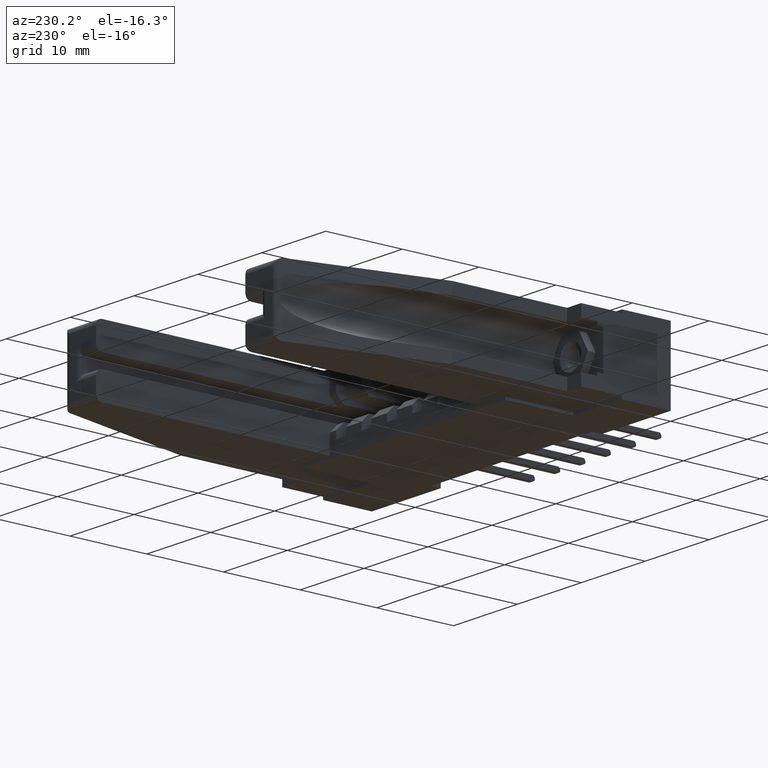
[diagram: clean part render]
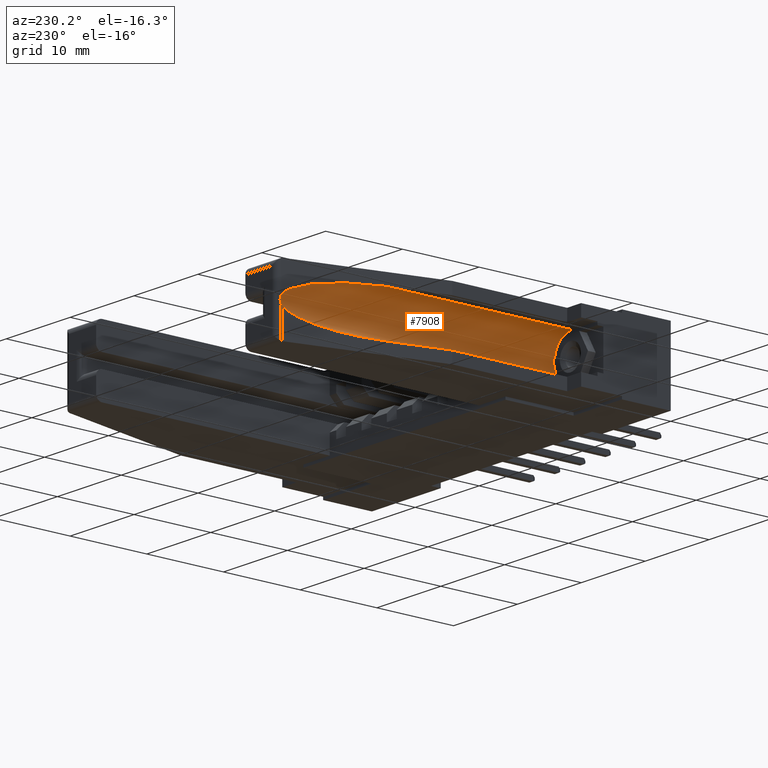
[diagram: same view with one face highlighted and labeled with its STEP entity id]
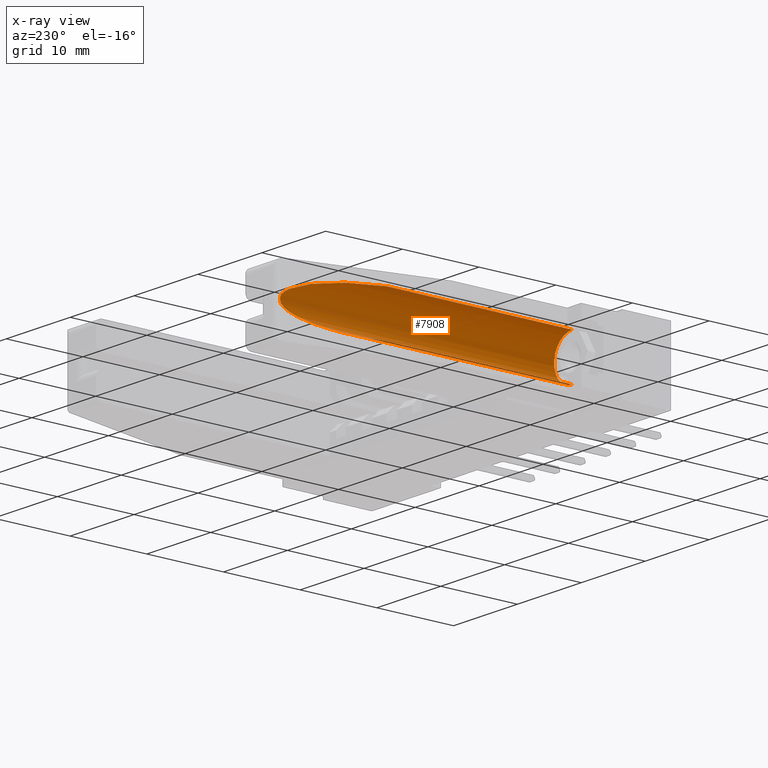
[diagram: x-ray of the same camera — body ghosted, the highlighted face saturated]
A machine part, auxiliary view. The second image highlights one B-rep face of the part: STEP entity #7908.
The next image is the same camera in x-ray: the body ghosted, the highlighted face saturated — about 0% of this face is hidden behind the body in this view.
In plain terms, the highlighted cylindrical surface (edge-blend (fillet) strip) has radius 2.8575 mm, axis along (0, 1, 0).
Its self-contained STEP definition (entity closure, byte-faithful):
#19 = CARTESIAN_POINT ( 'NONE',  ( 0.2675005102363445800, 1.533079420563984800, -0.1753409430533595100 ) ) ;
#106 = CARTESIAN_POINT ( 'NONE',  ( 0.2665477326809419000, 1.530937437894279700, -0.1865728330937866900 ) ) ;
#150 = LINE ( 'NONE', #6443, #3929 ) ;
#183 = CARTESIAN_POINT ( 'NONE',  ( 0.2665402951778601500, 1.530919410688852400, -0.1563644579457770200 ) ) ;
#198 = DIRECTION ( 'NONE',  ( -0.0000000000000000000, 1.000000000000000000, -0.0000000000000000000 ) ) ;
#322 = VERTEX_POINT ( 'NONE', #1205 ) ;
#327 = CARTESIAN_POINT ( 'NONE',  ( 0.1550000000000000000, 1.079729729729729500, -0.2839999999999999700 ) ) ;
#598 = EDGE_CURVE ( 'NONE', #10899, #322, #1661, .T. ) ;
#907 = CARTESIAN_POINT ( 'NONE',  ( 0.2674994877860725800, 1.533077309800847700, -0.1676292255492849700 ) ) ;
#1146 = VERTEX_POINT ( 'NONE', #3449 ) ;
#1205 = CARTESIAN_POINT ( 'NONE',  ( 0.2653722146876837400, 1.527184654139258400, -0.1497233100555697400 ) ) ;
#1238 = CARTESIAN_POINT ( 'NONE',  ( 0.2653722146876837400, 1.527184654139258400, -0.1932766899444302300 ) ) ;
#1294 = FACE_OUTER_BOUND ( 'NONE', #10085, .T. ) ;
#1661 =( BOUNDED_CURVE ( )  B_SPLINE_CURVE ( 3, ( #9745, #6189, #8068, #7108 ),
 .UNSPECIFIED., .F., .F. ) 
 B_SPLINE_CURVE_WITH_KNOTS ( ( 4, 4 ),
 ( 4.712388980384689700, 6.088385046520238900 ),
 .UNSPECIFIED. ) 
 CURVE ( )  GEOMETRIC_REPRESENTATION_ITEM ( )  RATIONAL_B_SPLINE_CURVE ( ( 1.000000000000000000, 0.8483458633392274600, 0.8483458633392274600, 1.000000000000000000 ) ) 
 REPRESENTATION_ITEM ( '' )  );
#1900 = DIRECTION ( 'NONE',  ( 0.0000000000000000000, 0.0000000000000000000, 1.000000000000000000 ) ) ;
#1972 = CARTESIAN_POINT ( 'NONE',  ( 0.1550000000000000300, 0.1259999999999999700, -0.05900000000000002500 ) ) ;
#1982 = CARTESIAN_POINT ( 'NONE',  ( 0.1550000000000000300, -0.3075443462566659300, -0.1715000000000000100 ) ) ;
#2216 = CARTESIAN_POINT ( 'NONE',  ( 0.1550000000000000000, 1.079729729729729500, -0.05900000000000003900 ) ) ;
#2317 = ORIENTED_EDGE ( 'NONE', *, *, #598, .T. ) ;
#2334 = VECTOR ( 'NONE', #10389, 39.37007874015748100 ) ;
#2770 = CARTESIAN_POINT ( 'NONE',  ( 0.1550000000000000000, 1.079729729729729500, -0.2839999999999999700 ) ) ;
#3180 = CARTESIAN_POINT ( 'NONE',  ( 0.1550000000000000300, 0.1259999999999999700, -0.1715000000000000100 ) ) ;
#3255 = ORIENTED_EDGE ( 'NONE', *, *, #3972, .T. ) ;
#3308 = LINE ( 'NONE', #6785, #2334 ) ;
#3449 = CARTESIAN_POINT ( 'NONE',  ( 0.1550000000000000000, 0.1259999999999999700, -0.2839999999999999700 ) ) ;
#3713 = CARTESIAN_POINT ( 'NONE',  ( 0.2653722146876837400, 1.527184654139258400, -0.1932766899444302300 ) ) ;
#3861 = DIRECTION ( 'NONE',  ( -0.0000000000000000000, 1.000000000000000000, -0.0000000000000000000 ) ) ;
#3865 = EDGE_CURVE ( 'NONE', #4045, #4012, #8794, .T. ) ;
#3929 = VECTOR ( 'NONE', #3861, 39.37007874015748100 ) ;
#3972 = EDGE_CURVE ( 'NONE', #9566, #10899, #150, .T. ) ;
#4012 = VERTEX_POINT ( 'NONE', #327 ) ;
#4045 = VERTEX_POINT ( 'NONE', #1238 ) ;
#4078 = DIRECTION ( 'NONE',  ( 0.0000000000000000000, 0.0000000000000000000, 1.000000000000000000 ) ) ;
#4646 = CARTESIAN_POINT ( 'NONE',  ( 0.2672997671973894600, 1.532692632294005800, -0.1791713265570003500 ) ) ;
#5467 = AXIS2_PLACEMENT_3D ( 'NONE', #3180, #9481, #4078 ) ;
#5653 = EDGE_CURVE ( 'NONE', #322, #4045, #8640, .T. ) ;
#5788 = EDGE_CURVE ( 'NONE', #1146, #4012, #3308, .T. ) ;
#6039 = EDGE_CURVE ( 'NONE', #1146, #9566, #9762, .T. ) ;
#6189 = CARTESIAN_POINT ( 'NONE',  ( 0.2111379438000715000, 1.307315988378668500, -0.05900000000000001800 ) ) ;
#6443 = CARTESIAN_POINT ( 'NONE',  ( 0.1550000000000000000, -0.3075443462566659300, -0.05900000000000003200 ) ) ;
#6672 = ORIENTED_EDGE ( 'NONE', *, *, #5788, .F. ) ;
#6785 = CARTESIAN_POINT ( 'NONE',  ( 0.1550000000000000000, -0.3075443462566659300, -0.2839999999999999700 ) ) ;
#7052 = ORIENTED_EDGE ( 'NONE', *, *, #3865, .T. ) ;
#7108 = CARTESIAN_POINT ( 'NONE',  ( 0.2653722146876837400, 1.527184654139258400, -0.1497233100555697400 ) ) ;
#7244 = CARTESIAN_POINT ( 'NONE',  ( 0.2111379438000716400, 1.307315988378668500, -0.2840000000000000300 ) ) ;
#7287 = CARTESIAN_POINT ( 'NONE',  ( 0.2659695340301833100, 1.529606219041284000, -0.1527507425476382100 ) ) ;
#7366 = CARTESIAN_POINT ( 'NONE',  ( 0.2673007932318817700, 1.532695689982142700, -0.1638283690697845100 ) ) ;
#7748 = AXIS2_PLACEMENT_3D ( 'NONE', #1982, #198, #1900 ) ;
#7908 = ADVANCED_FACE ( 'NONE', ( #1294 ), #10540, .F. ) ;
#8068 = CARTESIAN_POINT ( 'NONE',  ( 0.2545055604987769800, 1.483130650670717600, -0.09464713952022194000 ) ) ;
#8640 = B_SPLINE_CURVE_WITH_KNOTS ( 'NONE', 3,
 ( #9946, #7287, #183, #7366, #907, #19, #4646, #106, #9192, #3713 ),
 .UNSPECIFIED., .F., .F.,
 ( 4, 2, 2, 2, 4 ),
 ( 8.673617379884035500E-019, 0.0002913334948949183500, 0.0005826669897898358300, 0.0008740004846847532600, 0.001165333979579670800 ),
 .UNSPECIFIED. ) ;
#8794 =( BOUNDED_CURVE ( )  B_SPLINE_CURVE ( 3, ( #10721, #8989, #7244, #2770 ),
 .UNSPECIFIED., .F., .F. ) 
 B_SPLINE_CURVE_WITH_KNOTS ( ( 4, 4 ),
 ( 0.1948002606593472700, 1.570796326794896600 ),
 .UNSPECIFIED. ) 
 CURVE ( )  GEOMETRIC_REPRESENTATION_ITEM ( )  RATIONAL_B_SPLINE_CURVE ( ( 1.000000000000000000, 0.8483458633392274600, 0.8483458633392274600, 1.000000000000000000 ) ) 
 REPRESENTATION_ITEM ( '' )  );
#8989 = CARTESIAN_POINT ( 'NONE',  ( 0.2545055604987769800, 1.483130650670717600, -0.2483528604797780900 ) ) ;
#9112 = ORIENTED_EDGE ( 'NONE', *, *, #5653, .T. ) ;
#9192 = CARTESIAN_POINT ( 'NONE',  ( 0.2659676665268745400, 1.529598648082111800, -0.1902587226409276400 ) ) ;
#9481 = DIRECTION ( 'NONE',  ( -0.0000000000000000000, -1.000000000000000000, -0.0000000000000000000 ) ) ;
#9566 = VERTEX_POINT ( 'NONE', #1972 ) ;
#9745 = CARTESIAN_POINT ( 'NONE',  ( 0.1550000000000000000, 1.079729729729729500, -0.05900000000000003900 ) ) ;
#9762 = CIRCLE ( 'NONE', #5467, 0.1124999999999999800 ) ;
#9946 = CARTESIAN_POINT ( 'NONE',  ( 0.2653722146876837400, 1.527184654139258400, -0.1497233100555697400 ) ) ;
#10085 = EDGE_LOOP ( 'NONE', ( #2317, #9112, #7052, #6672, #10747, #3255 ) ) ;
#10389 = DIRECTION ( 'NONE',  ( -0.0000000000000000000, 1.000000000000000000, -0.0000000000000000000 ) ) ;
#10540 = CYLINDRICAL_SURFACE ( 'NONE', #7748, 0.1124999999999999800 ) ;
#10721 = CARTESIAN_POINT ( 'NONE',  ( 0.2653722146876837400, 1.527184654139258400, -0.1932766899444302300 ) ) ;
#10747 = ORIENTED_EDGE ( 'NONE', *, *, #6039, .T. ) ;
#10899 = VERTEX_POINT ( 'NONE', #2216 ) ;